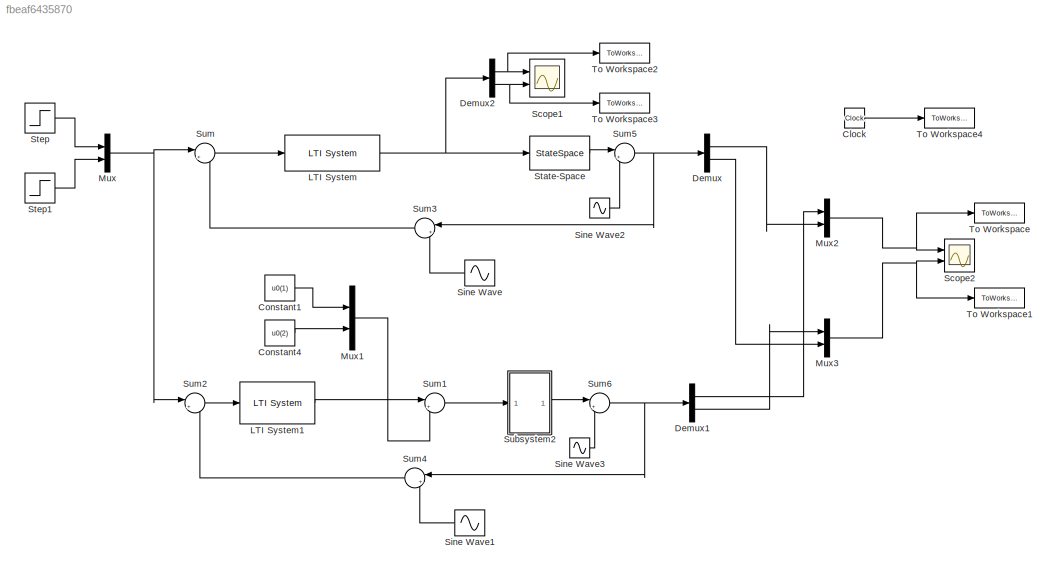
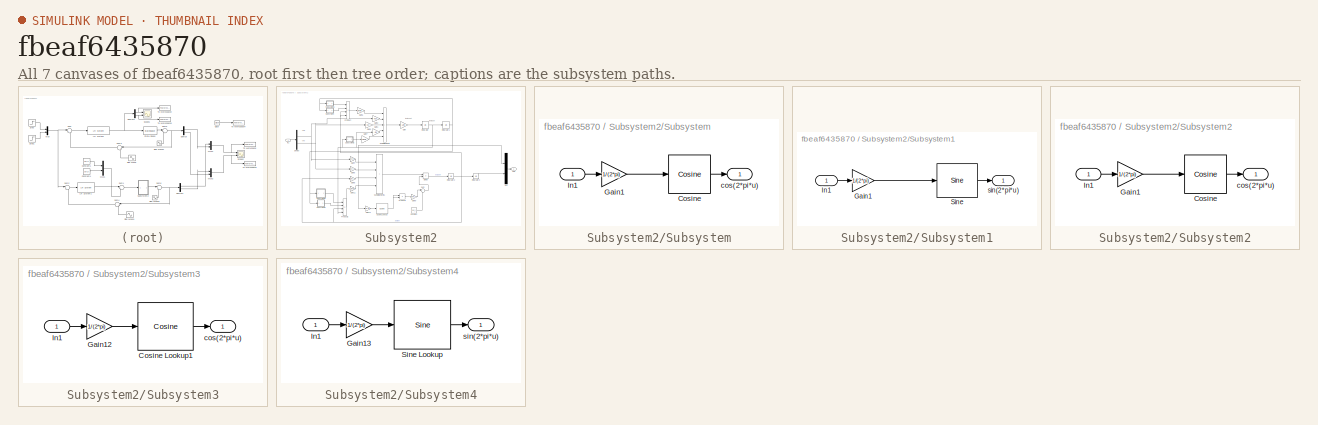
[diagram: thumbnail index - all 7 canvases of the model, root first then tree order]
MODEL slx_fbeaf6435870
KIND model
CONFIG AbsTol = auto
CONFIG EnableMultiTasking = off
CONFIG FixedStep = auto
CONFIG MaxStep = auto
CONFIG MinStep = auto
CONFIG RelTol = 1e-3
CONFIG SampleTimeConstraint = Unconstrained
CONFIG SolverName = VariableStepAuto
CONFIG StartTime = 0.0
CONFIG StopTime = 10.0
BLOCK [Clock] Clock
BLOCK [Constant] Constant1
  Value = u0(1)
BLOCK [Constant] Constant4
  Value = u0(2)
BLOCK [Demux] Demux
  Outputs = 2
  Ports = [1, 2]
BLOCK [Demux] Demux1
  Outputs = 2
  Ports = [1, 2]
BLOCK [Demux] Demux2
  Outputs = 2
  Ports = [1, 2]
BLOCK [Reference] LTI System  REF=cstblocks/LTI System
  Ports = [1, 1]
  SourceBlock = cstblocks/LTI System
  SourceProductBaseCode = CT
  SourceType = LTI Block
BLOCK [Reference] LTI System1  REF=cstblocks/LTI System
  Ports = [1, 1]
  SourceBlock = cstblocks/LTI System
  SourceProductBaseCode = CT
  SourceType = LTI Block
BLOCK [Mux] Mux
  DisplayOption = bar
  Inputs = 2
  Ports = [2, 1]
BLOCK [Mux] Mux1
  DisplayOption = bar
  Inputs = 2
  Ports = [2, 1]
BLOCK [Mux] Mux2
  DisplayOption = bar
  Inputs = 2
  Ports = [2, 1]
BLOCK [Mux] Mux3
  DisplayOption = bar
  Inputs = 2
  Ports = [2, 1]
BLOCK [Scope] Scope1
  Floating = off
  NumInputPorts = 2
  Ports = [2]
  ScopeSpecificationString = Simulink.scopes.TimeScopeBlockCfg('CurrentConfiguration', extmgr.ConfigurationSet(extmgr.Configuration('Core','General UI',true),extmgr.Configuration('Core','Source UI',true),extmgr.Configuration('Sources','WiredSimulink',true,'DataLoggingVariableName','ScopeData1'),extmgr.Configuration('Visuals','Time Domain',true,'SerializedDisplays',{struct('MinYLimReal','-0.09784','MaxYLimReal','0.7174','YLabe...<+1428ch>
BLOCK [Scope] Scope2
  Floating = off
  NumInputPorts = 2
  Ports = [2]
  ScopeSpecificationString = Simulink.scopes.TimeScopeBlockCfg('CurrentConfiguration', extmgr.ConfigurationSet(extmgr.Configuration('Core','General UI',true),extmgr.Configuration('Core','Source UI',true),extmgr.Configuration('Sources','WiredSimulink',true),extmgr.Configuration('Visuals','Time Domain',true,'SerializedDisplays',{struct('MinYLimReal','-0.04412','MaxYLimReal','0.34662','YLabelReal','','MinYLimMag','0.00000','MaxY...<+2065ch>
BLOCK [Sin] Sine Wave
  Amplitude = 0
  Frequency = 100
  Ports = [0, 1]
  SampleTime = 0
BLOCK [Sin] Sine Wave1
  Amplitude = 0
  Frequency = 100
  Ports = [0, 1]
  SampleTime = 0
BLOCK [Sin] Sine Wave2
  Amplitude = 0
  Frequency = 1e-4
  Ports = [0, 1]
  SampleTime = 0
BLOCK [Sin] Sine Wave3
  Amplitude = 0
  Frequency = 1e-4
  Ports = [0, 1]
  SampleTime = 0
BLOCK [StateSpace] State-Space
  A = A
  B = B
  C = C
  D = D
  InitialCondition = [0;0;0;0]
  Ports = [1, 1]
BLOCK [Step] Step
  After = 0.3
  SampleTime = 0
BLOCK [Step] Step1
  After = 0.3
  SampleTime = 0
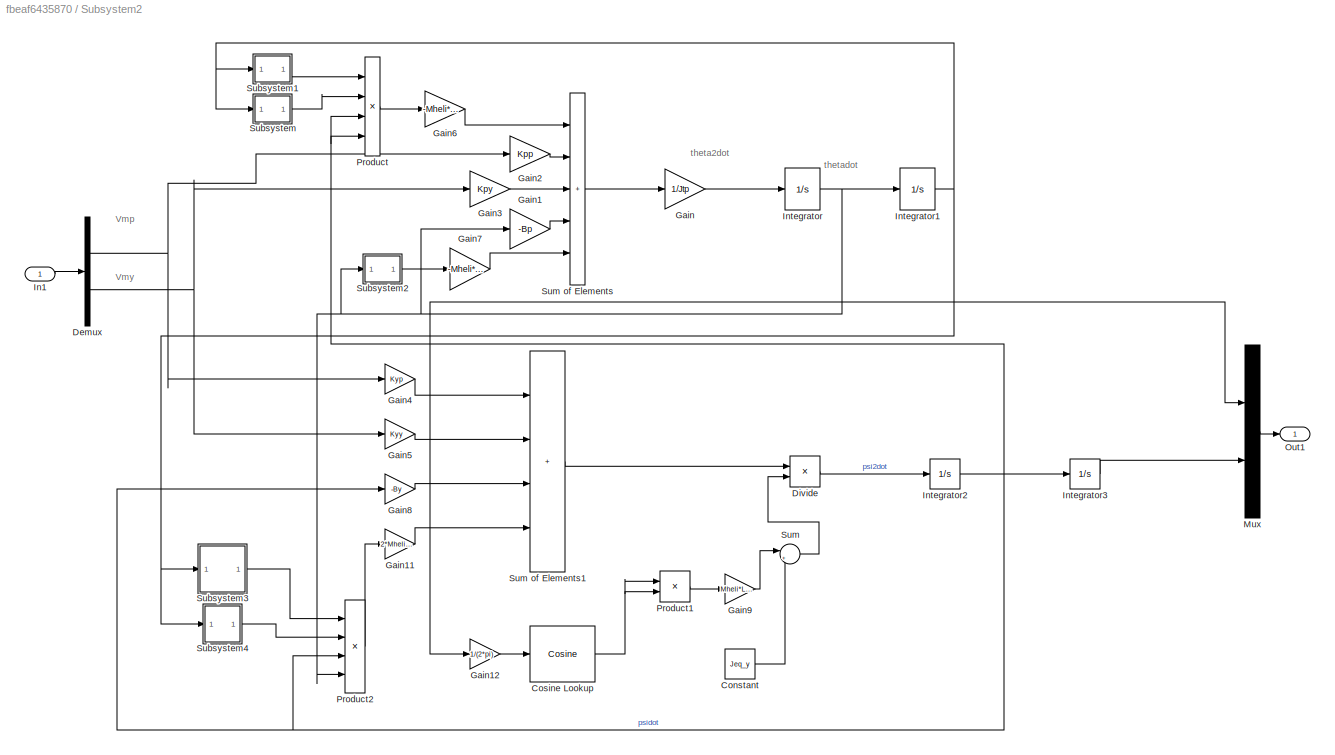
BLOCK [SubSystem] Subsystem2
  Ports = [1, 1]
  RequestExecContextInheritance = off
BLOCK [Constant] Subsystem2/Constant
  Value = Jeq_y
BLOCK [Reference] Subsystem2/Cosine Lookup  REF=simulink/Lookup
Tables/Cosine
  Ports = [1, 1]
  SourceBlock = simulink/Lookup\nTables/Cosine
  SourceProductBaseCode = SL
  SourceType = Sine and Cosine
BLOCK [Demux] Subsystem2/Demux
  Outputs = 2
  Ports = [1, 2]
BLOCK [Product] Subsystem2/Divide
  Inputs = */
  Ports = [2, 1]
BLOCK [Gain] Subsystem2/Gain
  Gain = 1/Jtp
BLOCK [Gain] Subsystem2/Gain1
  Gain = -Bp
BLOCK [Gain] Subsystem2/Gain11
  Gain = 2*Mheli*Lcm^2
BLOCK [Gain] Subsystem2/Gain12
  Gain = 1/(2*pi)
BLOCK [Gain] Subsystem2/Gain2
  Gain = Kpp
BLOCK [Gain] Subsystem2/Gain3
  Gain = Kpy
BLOCK [Gain] Subsystem2/Gain4
  Gain = Kyp
BLOCK [Gain] Subsystem2/Gain5
  Gain = Kyy
BLOCK [Gain] Subsystem2/Gain6
  Gain = -Mheli*Lcm^2
BLOCK [Gain] Subsystem2/Gain7
  Gain = -Mheli*g*Lcm
BLOCK [Gain] Subsystem2/Gain8
  Gain = -By
BLOCK [Gain] Subsystem2/Gain9
  Gain = Mheli*Lcm^2
BLOCK [Inport] Subsystem2/In1
BLOCK [Integrator] Subsystem2/Integrator
  Ports = [1, 1]
BLOCK [Integrator] Subsystem2/Integrator1
  Ports = [1, 1]
BLOCK [Integrator] Subsystem2/Integrator2
  Ports = [1, 1]
BLOCK [Integrator] Subsystem2/Integrator3
  Ports = [1, 1]
BLOCK [Mux] Subsystem2/Mux
  DisplayOption = bar
  Inputs = 2
  Ports = [2, 1]
BLOCK [Outport] Subsystem2/Out1
BLOCK [Product] Subsystem2/Product
  Inputs = 4
  Ports = [4, 1]
BLOCK [Product] Subsystem2/Product1
  Ports = [2, 1]
BLOCK [Product] Subsystem2/Product2
  Inputs = 4
  Ports = [4, 1]
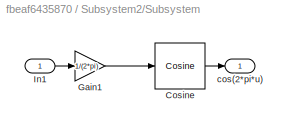
BLOCK [SubSystem] Subsystem2/Subsystem
  Ports = [1, 1]
  RequestExecContextInheritance = off
BLOCK [Reference] Subsystem2/Subsystem/Cosine  REF=simulink/Lookup
Tables/Cosine
  Ports = [1, 1]
  SourceBlock = simulink/Lookup\nTables/Cosine
  SourceProductBaseCode = SL
  SourceType = Sine and Cosine
BLOCK [Gain] Subsystem2/Subsystem/Gain1
  Gain = 1/(2*pi)
BLOCK [Inport] Subsystem2/Subsystem/In1
BLOCK [Outport] Subsystem2/Subsystem/cos(2*pi*u)
BLOCK [SubSystem] Subsystem2/Subsystem1
  Ports = [1, 1]
  RequestExecContextInheritance = off
BLOCK [Gain] Subsystem2/Subsystem1/Gain1
  Gain = 1/(2*pi)
BLOCK [Inport] Subsystem2/Subsystem1/In1
BLOCK [Reference] Subsystem2/Subsystem1/Sine  REF=simulink/Lookup
Tables/Sine
  Ports = [1, 1]
  SourceBlock = simulink/Lookup\nTables/Sine
  SourceProductBaseCode = SL
  SourceType = Sine and Cosine
BLOCK [Outport] Subsystem2/Subsystem1/sin(2*pi*u)
BLOCK [SubSystem] Subsystem2/Subsystem2
  Ports = [1, 1]
  RequestExecContextInheritance = off
BLOCK [Reference] Subsystem2/Subsystem2/Cosine  REF=simulink/Lookup
Tables/Cosine
  Ports = [1, 1]
  SourceBlock = simulink/Lookup\nTables/Cosine
  SourceProductBaseCode = SL
  SourceType = Sine and Cosine
BLOCK [Gain] Subsystem2/Subsystem2/Gain1
  Gain = 1/(2*pi)
BLOCK [Inport] Subsystem2/Subsystem2/In1
BLOCK [Outport] Subsystem2/Subsystem2/cos(2*pi*u)
BLOCK [SubSystem] Subsystem2/Subsystem3
  Ports = [1, 1]
  RequestExecContextInheritance = off
BLOCK [Reference] Subsystem2/Subsystem3/Cosine Lookup1  REF=simulink/Lookup
Tables/Cosine
  Ports = [1, 1]
  SourceBlock = simulink/Lookup\nTables/Cosine
  SourceProductBaseCode = SL
  SourceType = Sine and Cosine
BLOCK [Gain] Subsystem2/Subsystem3/Gain12
  Gain = 1/(2*pi)
BLOCK [Inport] Subsystem2/Subsystem3/In1
BLOCK [Outport] Subsystem2/Subsystem3/cos(2*pi*u)
BLOCK [SubSystem] Subsystem2/Subsystem4
  Ports = [1, 1]
  RequestExecContextInheritance = off
BLOCK [Gain] Subsystem2/Subsystem4/Gain13
  Gain = 1/(2*pi)
BLOCK [Inport] Subsystem2/Subsystem4/In1
BLOCK [Reference] Subsystem2/Subsystem4/Sine Lookup  REF=simulink/Lookup
Tables/Sine
  Ports = [1, 1]
  SourceBlock = simulink/Lookup\nTables/Sine
  SourceProductBaseCode = SL
  SourceType = Sine and Cosine
BLOCK [Outport] Subsystem2/Subsystem4/sin(2*pi*u)
BLOCK [Sum] Subsystem2/Sum
  Inputs = |++
  Ports = [2, 1]
BLOCK [Sum] Subsystem2/Sum of Elements
  IconShape = rectangular
  Inputs = +++++
  Ports = [5, 1]
BLOCK [Sum] Subsystem2/Sum of Elements1
  IconShape = rectangular
  Inputs = ++++
  Ports = [4, 1]
BLOCK [Sum] Sum
  Inputs = |+-
  Ports = [2, 1]
BLOCK [Sum] Sum1
  Inputs = |++
  Ports = [2, 1]
BLOCK [Sum] Sum2
  Inputs = |+-
  Ports = [2, 1]
BLOCK [Sum] Sum3
  Inputs = |++
  Ports = [2, 1]
BLOCK [Sum] Sum4
  Inputs = |++
  Ports = [2, 1]
BLOCK [Sum] Sum5
  Inputs = |++
  Ports = [2, 1]
BLOCK [Sum] Sum6
  Inputs = |++
  Ports = [2, 1]
BLOCK [ToWorkspace] To Workspace
  FixptAsFi = on
  MaxDataPoints = inf
  Ports = [1]
  SampleTime = -1
  Save2DSignal = 2-D array (concatenate along first dimension)
  VariableName = pitch
BLOCK [ToWorkspace] To Workspace1
  FixptAsFi = on
  MaxDataPoints = inf
  Ports = [1]
  SampleTime = -1
  Save2DSignal = 2-D array (concatenate along first dimension)
  VariableName = yaw
BLOCK [ToWorkspace] To Workspace2
  FixptAsFi = on
  MaxDataPoints = inf
  Ports = [1]
  SampleTime = -1
  Save2DSignal = 2-D array (concatenate along first dimension)
  VariableName = motorpitch
BLOCK [ToWorkspace] To Workspace3
  FixptAsFi = on
  MaxDataPoints = inf
  Ports = [1]
  SampleTime = -1
  Save2DSignal = 2-D array (concatenate along first dimension)
  VariableName = motoryaw
BLOCK [ToWorkspace] To Workspace4
  FixptAsFi = on
  MaxDataPoints = inf
  Ports = [1]
  SampleTime = -1
  Save2DSignal = 2-D array (concatenate along first dimension)
  VariableName = t
ANNOTATION Subsystem2: Vmp
ANNOTATION Subsystem2: Vmy
ANNOTATION Subsystem2: theta2dot
ANNOTATION Subsystem2: thetadot
LINE Clock:1 -> To Workspace4:1
LINE Constant1:1 -> Mux1:1
LINE Constant4:1 -> Mux1:2
LINE Demux1:1 -> Mux2:1
LINE Demux1:2 -> Mux3:1
NET Demux2:1 -> Scope1:1, To Workspace2:1
NET Demux2:2 -> Scope1:2, To Workspace3:1
LINE Demux:1 -> Mux2:2
LINE Demux:2 -> Mux3:2
LINE LTI System1:1 -> Sum1:1
NET LTI System:1 -> Demux2:1, State-Space:1
LINE Mux1:1 -> Sum1:2
NET Mux2:1 -> Scope2:1, To Workspace:1
NET Mux3:1 -> Scope2:2, To Workspace1:1
NET Mux:1 -> Sum2:1, Sum:1
LINE Sine Wave1:1 -> Sum4:2
LINE Sine Wave2:1 -> Sum5:2
LINE Sine Wave3:1 -> Sum6:2
LINE Sine Wave:1 -> Sum3:2
LINE State-Space:1 -> Sum5:1
LINE Step1:1 -> Mux:2
LINE Step:1 -> Mux:1
LINE Subsystem2/Constant:1 -> Subsystem2/Sum:2
NET Subsystem2/Cosine Lookup:1 -> Subsystem2/Product1:1, Subsystem2/Product1:2
NET Subsystem2/Demux:1 -> Subsystem2/Gain2:1, Subsystem2/Gain4:1
NET Subsystem2/Demux:2 -> Subsystem2/Gain3:1, Subsystem2/Gain5:1
LINE Subsystem2/Divide:1 -> Subsystem2/Integrator2:1
LINE Subsystem2/Gain11:1 -> Subsystem2/Sum of Elements1:4
LINE Subsystem2/Gain12:1 -> Subsystem2/Cosine Lookup:1
LINE Subsystem2/Gain1:1 -> Subsystem2/Sum of Elements:4
LINE Subsystem2/Gain2:1 -> Subsystem2/Sum of Elements:2
LINE Subsystem2/Gain3:1 -> Subsystem2/Sum of Elements:3
LINE Subsystem2/Gain4:1 -> Subsystem2/Sum of Elements1:1
LINE Subsystem2/Gain5:1 -> Subsystem2/Sum of Elements1:2
LINE Subsystem2/Gain6:1 -> Subsystem2/Sum of Elements:1
LINE Subsystem2/Gain7:1 -> Subsystem2/Sum of Elements:5
LINE Subsystem2/Gain8:1 -> Subsystem2/Sum of Elements1:3
LINE Subsystem2/Gain9:1 -> Subsystem2/Sum:1
LINE Subsystem2/Gain:1 -> Subsystem2/Integrator:1
LINE Subsystem2/In1:1 -> Subsystem2/Demux:1
NET Subsystem2/Integrator1:1 -> Subsystem2/Gain12:1, Subsystem2/Mux:1, Subsystem2/Subsystem1:1, Subsystem2/Subsystem3:1, Subsystem2/Subsystem4:1, Subsystem2/Subsystem:1
NET Subsystem2/Integrator2:1 -> Subsystem2/Gain8:1, Subsystem2/Integrator3:1, Subsystem2/Product2:3, Subsystem2/Product:3, Subsystem2/Product:4
LINE Subsystem2/Integrator3:1 -> Subsystem2/Mux:2
NET Subsystem2/Integrator:1 -> Subsystem2/Gain1:1, Subsystem2/Integrator1:1, Subsystem2/Product2:4, Subsystem2/Subsystem2:1
LINE Subsystem2/Mux:1 -> Subsystem2/Out1:1
LINE Subsystem2/Product1:1 -> Subsystem2/Gain9:1
LINE Subsystem2/Product2:1 -> Subsystem2/Gain11:1
LINE Subsystem2/Product:1 -> Subsystem2/Gain6:1
LINE Subsystem2/Subsystem/Cosine:1 -> Subsystem2/Subsystem/cos(2*pi*u):1
LINE Subsystem2/Subsystem/Gain1:1 -> Subsystem2/Subsystem/Cosine:1
LINE Subsystem2/Subsystem/In1:1 -> Subsystem2/Subsystem/Gain1:1
LINE Subsystem2/Subsystem1/Gain1:1 -> Subsystem2/Subsystem1/Sine:1
LINE Subsystem2/Subsystem1/In1:1 -> Subsystem2/Subsystem1/Gain1:1
LINE Subsystem2/Subsystem1/Sine:1 -> Subsystem2/Subsystem1/sin(2*pi*u):1
LINE Subsystem2/Subsystem1:1 -> Subsystem2/Product:1
LINE Subsystem2/Subsystem2/Cosine:1 -> Subsystem2/Subsystem2/cos(2*pi*u):1
LINE Subsystem2/Subsystem2/Gain1:1 -> Subsystem2/Subsystem2/Cosine:1
LINE Subsystem2/Subsystem2/In1:1 -> Subsystem2/Subsystem2/Gain1:1
LINE Subsystem2/Subsystem2:1 -> Subsystem2/Gain7:1
LINE Subsystem2/Subsystem3/Cosine Lookup1:1 -> Subsystem2/Subsystem3/cos(2*pi*u):1
LINE Subsystem2/Subsystem3/Gain12:1 -> Subsystem2/Subsystem3/Cosine Lookup1:1
LINE Subsystem2/Subsystem3/In1:1 -> Subsystem2/Subsystem3/Gain12:1
LINE Subsystem2/Subsystem3:1 -> Subsystem2/Product2:1
LINE Subsystem2/Subsystem4/Gain13:1 -> Subsystem2/Subsystem4/Sine Lookup:1
LINE Subsystem2/Subsystem4/In1:1 -> Subsystem2/Subsystem4/Gain13:1
LINE Subsystem2/Subsystem4/Sine Lookup:1 -> Subsystem2/Subsystem4/sin(2*pi*u):1
LINE Subsystem2/Subsystem4:1 -> Subsystem2/Product2:2
LINE Subsystem2/Subsystem:1 -> Subsystem2/Product:2
LINE Subsystem2/Sum of Elements1:1 -> Subsystem2/Divide:1
LINE Subsystem2/Sum of Elements:1 -> Subsystem2/Gain:1
LINE Subsystem2/Sum:1 -> Subsystem2/Divide:2
LINE Subsystem2:1 -> Sum6:1
LINE Sum1:1 -> Subsystem2:1
LINE Sum2:1 -> LTI System1:1
LINE Sum3:1 -> Sum:2
LINE Sum4:1 -> Sum2:2
NET Sum5:1 -> Demux:1, Sum3:1
NET Sum6:1 -> Demux1:1, Sum4:1
LINE Sum:1 -> LTI System:1
note: NET lines group one-source signal fan-out (src -> all destinations, sorted); 1:1 wires keep LINE
